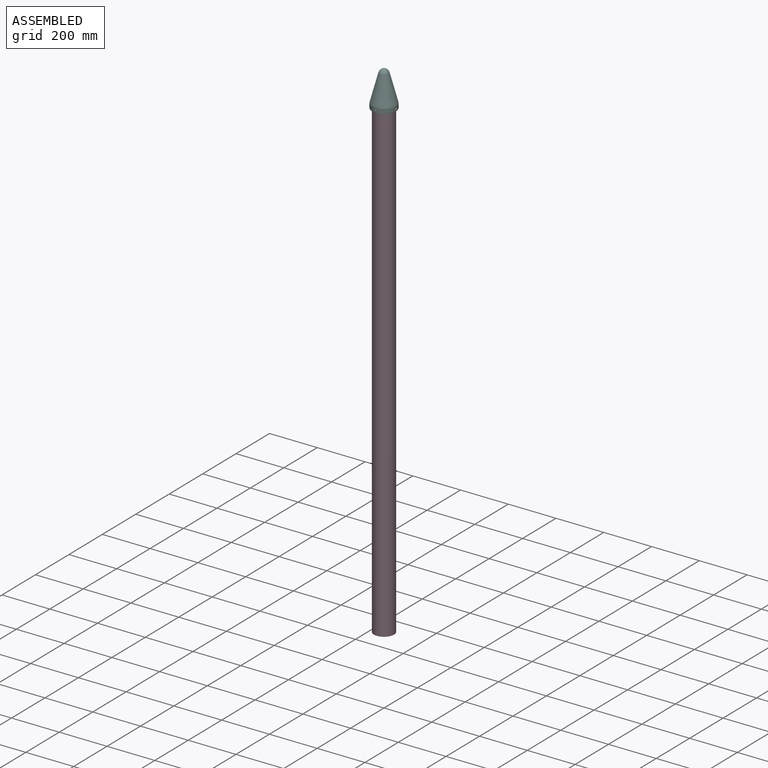
[diagram: assembled view]
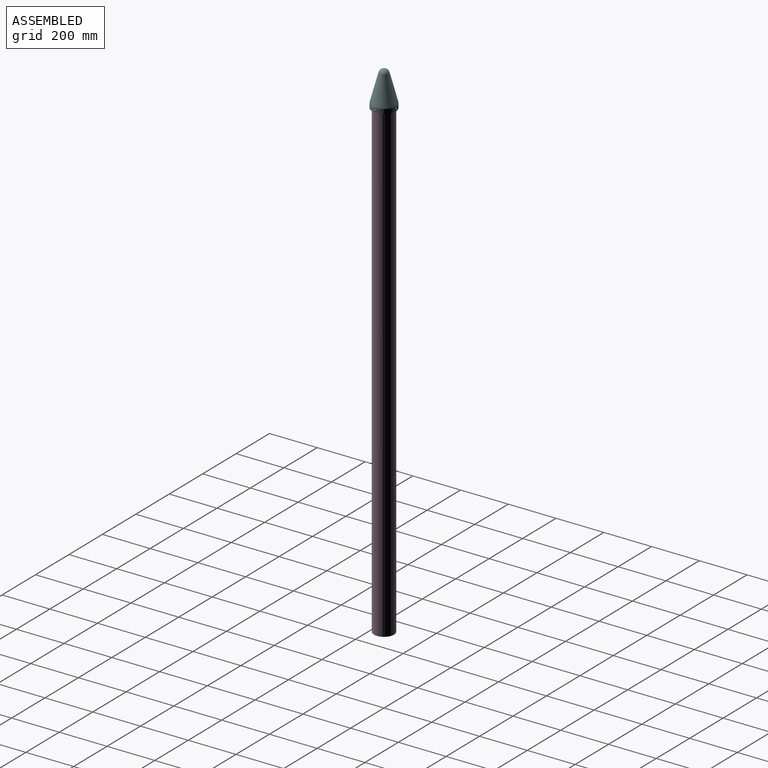
[diagram: assembled view, second angle]
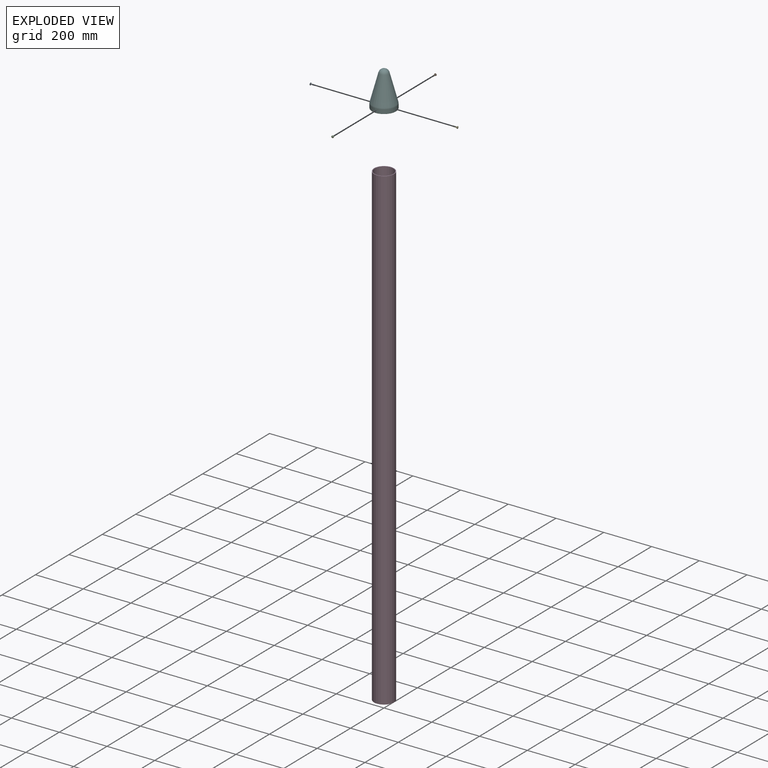
[diagram: exploded view]
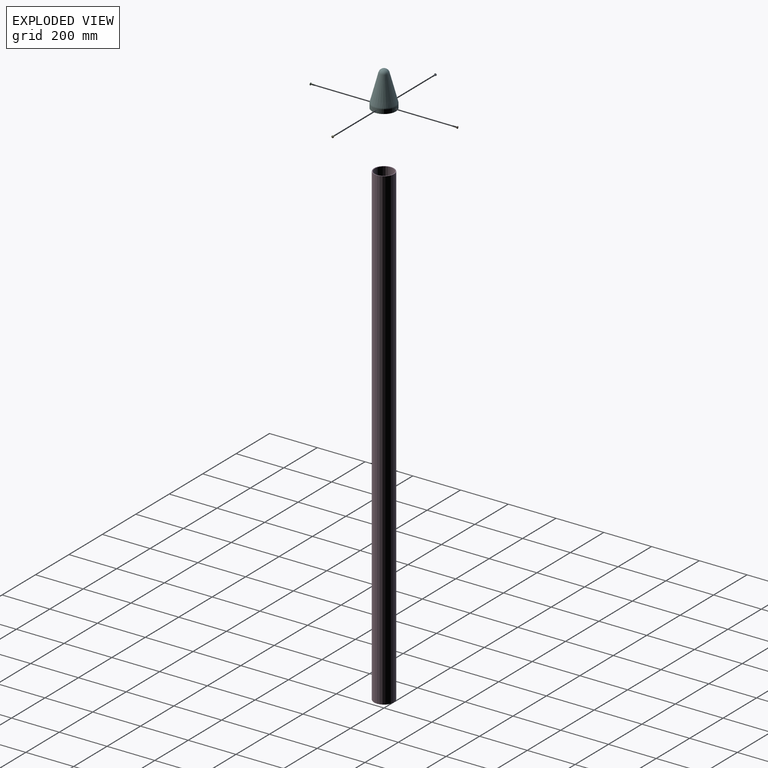
[diagram: exploded view, second angle]
ASSEMBLY  parts=6 mates=5
PART A: 47 faces, bbox 9.8x9.9x23.9 mm
  f0: cylinder r=1.5mm len=3mm, axis (0,0,-1), area 18.7mm2, adj f27,f46
  f1: torus R=1.65mm, axis (0,0,-1), area 2.3mm2, adj f4,f45
  f2: cylinder r=4.75mm len=9.5mm, axis (0,0,-1), area 53mm2, adj f3,f45
  f3: sphere r=7.24mm, area 74.1mm2, adj f2,f31,f32,f33,f34,f35,f36,f37
  f4: cylinder r=1.5mm len=3mm, axis (0,0,-1), area 19.4mm2, adj f1,f5
  f5: cone r=2mm half-angle=83deg, axis (0,0.4,-0.92), area 12mm2, adj f4,f6
  f6: cone r=1.95mm half-angle=73.5deg, axis (0,-0.4,0.92), area 11.9mm2, adj f5,f7
  f7: cylinder r=1.5mm len=3.07mm, axis (0,0,-1), area 16.9mm2, adj f6,f8
  f8: cone r=2mm half-angle=83deg, axis (0,0.4,-0.92), area 12mm2, adj f7,f9
  f9: cone r=1.95mm half-angle=73.5deg, axis (0,-0.4,0.92), area 11.9mm2, adj f8,f10
  f10: cylinder r=1.5mm len=3.07mm, axis (0,0,-1), area 16.9mm2, adj f9,f11
  f11: cone r=2mm half-angle=83deg, axis (0,0.4,-0.92), area 12mm2, adj f10,f12
  f12: cone r=1.95mm half-angle=73.5deg, axis (0,-0.4,0.92), area 11.9mm2, adj f11,f13
  f13: cylinder r=1.5mm len=3.07mm, axis (0,0,-1), area 16.9mm2, adj f12,f14
  f14: cone r=2mm half-angle=83deg, axis (0,0.4,-0.92), area 12mm2, adj f13,f15
  f15: cone r=1.95mm half-angle=73.5deg, axis (0,-0.4,0.92), area 11.9mm2, adj f14,f16
  f16: cylinder r=1.5mm len=3.07mm, axis (0,0,-1), area 16.9mm2, adj f15,f17
  f17: cone r=2mm half-angle=83deg, axis (0,0.4,-0.92), area 12mm2, adj f16,f18
  f18: cone r=1.95mm half-angle=73.5deg, axis (0,-0.4,0.92), area 11.9mm2, adj f17,f19
  f19: cylinder r=1.5mm len=3.07mm, axis (0,0,-1), area 16.9mm2, adj f18,f20
  f20: cone r=2mm half-angle=83deg, axis (0,0.4,-0.92), area 12mm2, adj f19,f21
  f21: cone r=1.95mm half-angle=73.5deg, axis (0,-0.4,0.92), area 11.9mm2, adj f20,f22
  f22: cylinder r=1.5mm len=3.07mm, axis (0,0,-1), area 16.9mm2, adj f21,f23
  f23: cone r=2mm half-angle=83deg, axis (0,0.4,-0.92), area 12mm2, adj f22,f24
  f24: cone r=1.95mm half-angle=73.5deg, axis (0,-0.4,0.92), area 11.9mm2, adj f23,f25
  f25: cylinder r=1.5mm len=3.07mm, axis (0,0,-1), area 16.9mm2, adj f24,f26
  f26: cone r=2mm half-angle=83deg, axis (0,0.4,-0.92), area 12mm2, adj f25,f27
  f27: cone r=1.95mm half-angle=73.5deg, axis (0,-0.4,0.92), area 11.9mm2, adj f0,f26
  f28: cone r=0.75mm half-angle=62deg, axis (0,0,1), area 6.1mm2, adj f29,f30,f33,f35,f36,f37,f38,f39
  f29: cone r=1.71mm half-angle=15.8deg, axis (0,0,1), area 1.7mm2, adj f28,f33,f34,f35
  f30: cone r=1.71mm half-angle=15.8deg, axis (0,0,1), area 1.7mm2, adj f28,f39,f40,f42
  f31: torus R=2.38mm, axis (0,0,1), area 0mm2, adj f3,f38,f41,f44
  f32: torus R=2.38mm, axis (0,0,1), area 0mm2, adj f3,f36,f37,f43
  f33: plane 2.56x1.75mm, normal (-1,0,0), area 2.1mm2, adj f3,f28,f29,f34,f38
  f34: torus R=2.38mm, axis (0,0,1), area 0mm2, adj f3,f29,f33,f35
  f35: plane 2.56x1.75mm, normal (1,0,0), area 2.1mm2, adj f3,f28,f29,f34,f36
  f36: plane 2.56x1.75mm, normal (0,1,0), area 2.1mm2, adj f3,f28,f32,f35,f43
  f37: plane 2.56x1.75mm, normal (0,-1,0), area 2.1mm2, adj f3,f28,f32,f40,f43
  f38: plane 2.56x1.75mm, normal (0,1,0), area 2.1mm2, adj f3,f28,f31,f33,f44
  f39: plane 2.56x1.75mm, normal (-1,0,0), area 2.1mm2, adj f3,f28,f30,f41,f42
  f40: plane 2.56x1.75mm, normal (1,0,0), area 2.1mm2, adj f3,f28,f30,f37,f42
  f41: plane 2.56x1.75mm, normal (0,-1,0), area 2.1mm2, adj f3,f28,f31,f39,f44
  f42: torus R=2.38mm, axis (0,0,1), area 0mm2, adj f3,f30,f39,f40
  f43: cone r=1.71mm half-angle=15.8deg, axis (0,0,1), area 1.7mm2, adj f28,f32,f36,f37
  f44: cone r=1.71mm half-angle=15.8deg, axis (0,0,1), area 1.7mm2, adj f28,f31,f38,f41
  f45: plane 9.5x9.5mm, normal (0,0,-1), area 62.3mm2, adj f1,f2
  f46: plane 3x3mm, normal (0,0,-1), area 7.1mm2, adj f0
PART B: same geometry as A
PART C: same geometry as A
PART D: 4 faces, bbox 84x84x2000 mm
  f0: cylinder r=42mm len=2000mm, axis (0,0,1), area 527787.6mm2, adj f1,f2
  f1: plane 84x84mm, normal (0,0,-1), area 763.4mm2, adj f0,f3
  f2: plane 84x84mm, normal (0,0,1), area 763.4mm2, adj f0,f3
  f3: cylinder r=39mm len=2000mm, axis (0,0,-1), area 490088.5mm2, adj f1,f2
PART E: same geometry as A
PART F: 15 faces, bbox 108.2x108.2x149.3 mm
  f0: cylinder r=42mm len=84mm, axis (0,0,1), area 4372.3mm2, adj f7,f9,f11,f12,f13,f14
  f1: cylinder r=50mm len=100mm, axis (0,0,1), area 5220.1mm2, adj f8,f10,f11,f12,f13,f14
  f2: plane 99x99mm, normal (0,0,-1), area 2023.2mm2, adj f9,f10
  f3: sphere r=20mm, area 1862.8mm2, adj f4
  f4: cone r=50mm half-angle=15deg, axis (0,0,-1), area 24993.9mm2, adj f3,f8
  f5: cone r=42mm half-angle=15deg, axis (0,0,-1), area 19016.8mm2, adj f6,f7
  f6: sphere r=12.27mm, area 701.4mm2, adj f5
  f7: torus R=22mm, axis (0,0,-1), area 1374.3mm2, adj f0,f5
  f8: torus R=30mm, axis (0,0,-1), area 1637.4mm2, adj f1,f4
  f9: cone r=42.5mm half-angle=45deg, axis (0,0,-1), area 187.7mm2, adj f0,f2
  f10: cone r=50mm half-angle=45deg, axis (0,0,1), area 221mm2, adj f1,f2
  f11: cylinder r=2.5mm len=8.07mm, axis (0,1,0), area 125.8mm2, adj f0,f1
  f12: cylinder r=2.5mm len=8.07mm, axis (0,1,0), area 125.8mm2, adj f0,f1
  f13: cylinder r=2.5mm len=8.07mm, axis (-1,0,0), area 125.8mm2, adj f0,f1
  f14: cylinder r=2.5mm len=8.07mm, axis (-1,0,0), area 125.8mm2, adj f0,f1
PLACE A rot(axis=(-0.71,0,0.71),180deg) t=(-50.2,0,-11.32)mm
PLACE B rot(axis=(-0.58,0.58,0.58),120deg) t=(0,50.2,-11.32)mm
PLACE C rot(axis=(0.58,0.58,-0.58),120deg) t=(0,-50.2,-11.32)mm
PLACE D t=(0,0,-2.63)mm
PLACE E rot(axis=(0,1,0),90deg) t=(50.2,0,-11.32)mm
PLACE F at identity fixed
MATE fastened C.f2 <-> F.f11  axis (0,1,0) through (0,-50.05,-11.32)mm
MATE fastened D.f0 <-> F.f0  axis (0,0,1) through (0,0,-2.63)mm
MATE fastened E.f2 <-> F.f13  axis (-1,0,0) through (50.05,0,-11.32)mm
MATE fastened B.f2 <-> F.f11  axis (0,-1,0) through (0,50.05,-11.32)mm
MATE fastened A.f2 <-> F.f13  axis (1,0,0) through (-50.05,0,-11.32)mm
